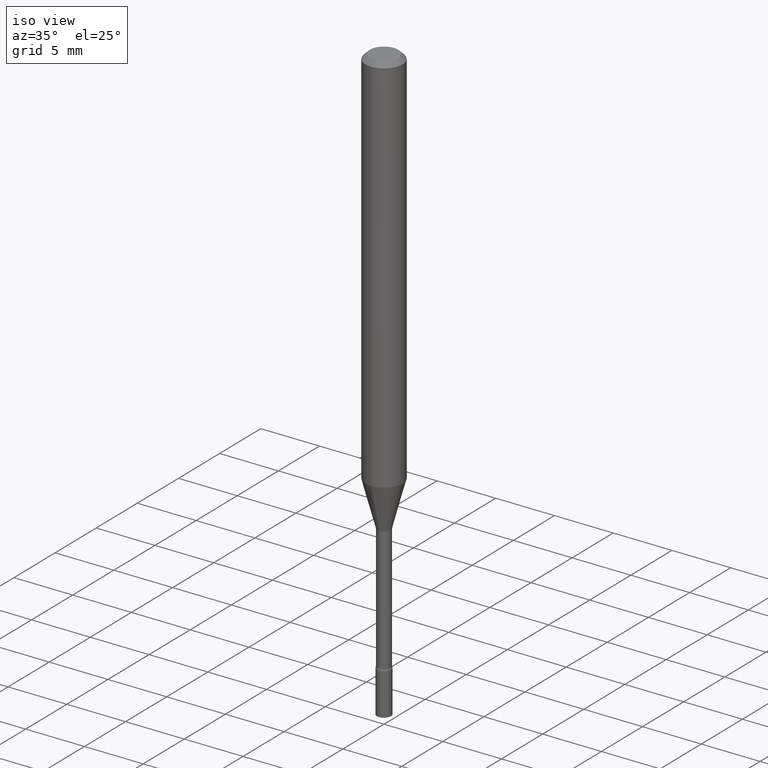
[diagram: clean part render]
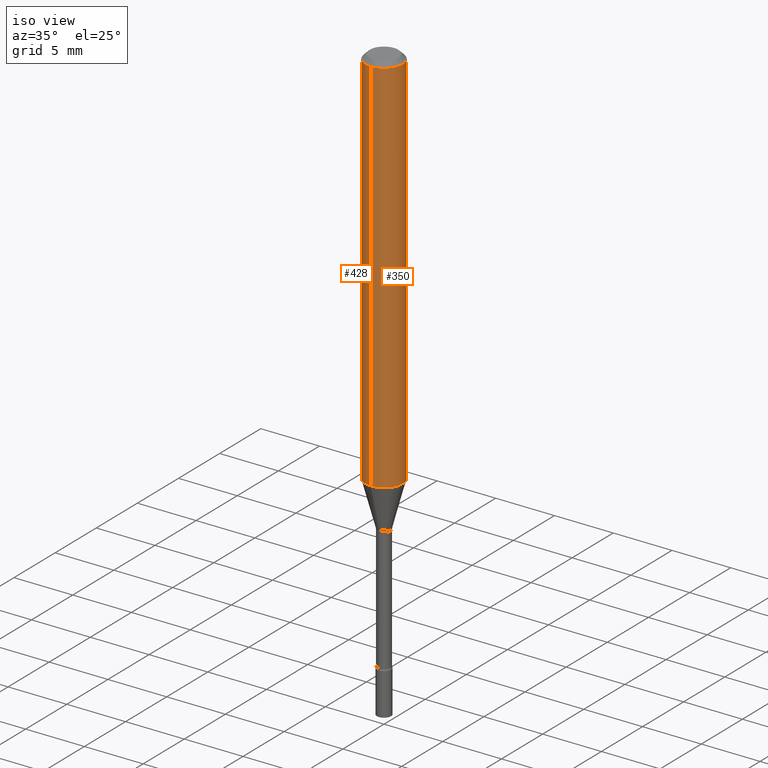
[diagram: same view with one multi-face feature highlighted, each face labeled with its STEP entity id]
A machine part, iso view. The highlighted faces form ONE feature: a constant-radius fillet chain: 2 tangent blend faces with common blend radius 1.5875 mm. The faces share edges in the B-rep.
Their STEP definitions:
[1] entity #428 (Cylinder):
#14 = DIRECTION ( 'NONE',  ( -6.982962677686265922E-15, -1.000000000000000000, 3.491467325019567696E-15 ) ) ;
#16 = EDGE_CURVE ( 'NONE', #422, #485, #69, .T. ) ;
#31 = DIRECTION ( 'NONE',  ( -6.982962677686265922E-15, -1.000000000000000000, 4.370956789862821150E-15 ) ) ;
#32 = DIRECTION ( 'NONE',  ( -2.445478591985838029E-29, 3.491467325019567696E-15, 1.000000000000000000 ) ) ;
#34 = ORIENTED_EDGE ( 'NONE', *, *, #16, .F. ) ;
#49 = ORIENTED_EDGE ( 'NONE', *, *, #76, .F. ) ;
#51 = CARTESIAN_POINT ( 'NONE',  ( -4.364351673553603615E-16, -0.06250000000000451028, -1.285225147374217780 ) ) ;
#58 = CARTESIAN_POINT ( 'NONE',  ( 3.668217887978764348E-31, -5.237200987529362293E-17, -0.01500000000000003067 ) ) ;
#69 = CIRCLE ( 'NONE', #372, 0.06250000000000000000 ) ;
#71 = EDGE_LOOP ( 'NONE', ( #49, #467, #303, #34 ) ) ;
#76 = EDGE_CURVE ( 'NONE', #464, #422, #462, .T. ) ;
#102 = LINE ( 'NONE', #411, #405 ) ;
#125 = EDGE_CURVE ( 'NONE', #386, #485, #102, .T. ) ;
#159 = CARTESIAN_POINT ( 'NONE',  ( 4.440892098500937762E-16, 0.06249999999999548278, -1.285225147374218224 ) ) ;
#184 = CARTESIAN_POINT ( 'NONE',  ( 0.000000000000000000, 0.000000000000000000, 0.000000000000000000 ) ) ;
#215 = CARTESIAN_POINT ( 'NONE',  ( 3.142990583785493865E-29, -4.487321607350540658E-15, -1.285225147374218002 ) ) ;
#253 = CIRCLE ( 'NONE', #418, 0.06250000000000000000 ) ;
#274 = EDGE_CURVE ( 'NONE', #464, #386, #253, .T. ) ;
#295 = FACE_OUTER_BOUND ( 'NONE', #71, .T. ) ;
#303 = ORIENTED_EDGE ( 'NONE', *, *, #125, .T. ) ;
#305 = CARTESIAN_POINT ( 'NONE',  ( -4.364351673553912750E-16, -0.06250000000000005551, -0.01499999999999981209 ) ) ;
#309 = AXIS2_PLACEMENT_3D ( 'NONE', #184, #32, #14 ) ;
#321 = CARTESIAN_POINT ( 'NONE',  ( 4.440892098500625669E-16, 0.06250000000000000000, -2.182167078137229810E-16 ) ) ;
#325 = DIRECTION ( 'NONE',  ( -2.445478591985837749E-29, 3.491467325019568091E-15, 1.000000000000000000 ) ) ;
#333 = DIRECTION ( 'NONE',  ( -2.445478591985838029E-29, 3.491467325019567696E-15, 1.000000000000000000 ) ) ;
#337 = DIRECTION ( 'NONE',  ( -2.445478591985837749E-29, 3.491467325019568091E-15, 1.000000000000000000 ) ) ;
#359 = VECTOR ( 'NONE', #325, 39.37007874015748143 ) ;
#372 = AXIS2_PLACEMENT_3D ( 'NONE', #58, #333, #512 ) ;
#373 = CARTESIAN_POINT ( 'NONE',  ( 4.440892098500941706E-16, 0.06249999999999995143, -0.01500000000000024751 ) ) ;
#376 = CYLINDRICAL_SURFACE ( 'NONE', #309, 0.06250000000000000000 ) ;
#386 = VERTEX_POINT ( 'NONE', #51 ) ;
#405 = VECTOR ( 'NONE', #337, 39.37007874015748143 ) ;
#411 = CARTESIAN_POINT ( 'NONE',  ( -4.364351673553916201E-16, -0.06250000000000000000, 2.182167078137229810E-16 ) ) ;
#418 = AXIS2_PLACEMENT_3D ( 'NONE', #215, #449, #31 ) ;
#422 = VERTEX_POINT ( 'NONE', #373 ) ;
#428 = ADVANCED_FACE ( 'NONE', ( #295 ), #376, .T. ) ;
#449 = DIRECTION ( 'NONE',  ( -2.445478591985838029E-29, 3.491467325019567696E-15, 1.000000000000000000 ) ) ;
#462 = LINE ( 'NONE', #321, #359 ) ;
#464 = VERTEX_POINT ( 'NONE', #159 ) ;
#467 = ORIENTED_EDGE ( 'NONE', *, *, #274, .T. ) ;
#485 = VERTEX_POINT ( 'NONE', #305 ) ;
#512 = DIRECTION ( 'NONE',  ( -6.982962677686265922E-15, -1.000000000000000000, 3.483106191921935554E-15 ) ) ;
[2] entity #350 (Cylinder):
#9 = AXIS2_PLACEMENT_3D ( 'NONE', #15, #255, #408 ) ;
#15 = CARTESIAN_POINT ( 'NONE',  ( 3.668217887978764348E-31, -5.237200987529362293E-17, -0.01500000000000003067 ) ) ;
#21 = CARTESIAN_POINT ( 'NONE',  ( 0.000000000000000000, 0.000000000000000000, 0.000000000000000000 ) ) ;
#51 = CARTESIAN_POINT ( 'NONE',  ( -4.364351673553603615E-16, -0.06250000000000451028, -1.285225147374217780 ) ) ;
#74 = ORIENTED_EDGE ( 'NONE', *, *, #331, .T. ) ;
#76 = EDGE_CURVE ( 'NONE', #464, #422, #462, .T. ) ;
#102 = LINE ( 'NONE', #411, #405 ) ;
#125 = EDGE_CURVE ( 'NONE', #386, #485, #102, .T. ) ;
#159 = CARTESIAN_POINT ( 'NONE',  ( 4.440892098500937762E-16, 0.06249999999999548278, -1.285225147374218224 ) ) ;
#168 = EDGE_CURVE ( 'NONE', #485, #422, #393, .T. ) ;
#175 = CIRCLE ( 'NONE', #357, 0.06250000000000000000 ) ;
#195 = FACE_OUTER_BOUND ( 'NONE', #470, .T. ) ;
#197 = ORIENTED_EDGE ( 'NONE', *, *, #76, .T. ) ;
#255 = DIRECTION ( 'NONE',  ( -2.445478591985838029E-29, 3.491467325019567696E-15, 1.000000000000000000 ) ) ;
#305 = CARTESIAN_POINT ( 'NONE',  ( -4.364351673553912750E-16, -0.06250000000000005551, -0.01499999999999981209 ) ) ;
#321 = CARTESIAN_POINT ( 'NONE',  ( 4.440892098500625669E-16, 0.06250000000000000000, -2.182167078137229810E-16 ) ) ;
#325 = DIRECTION ( 'NONE',  ( -2.445478591985837749E-29, 3.491467325019568091E-15, 1.000000000000000000 ) ) ;
#331 = EDGE_CURVE ( 'NONE', #386, #464, #175, .T. ) ;
#337 = DIRECTION ( 'NONE',  ( -2.445478591985837749E-29, 3.491467325019568091E-15, 1.000000000000000000 ) ) ;
#348 = DIRECTION ( 'NONE',  ( -6.982962677686265922E-15, -1.000000000000000000, 4.370956789862821150E-15 ) ) ;
#350 = ADVANCED_FACE ( 'NONE', ( #195 ), #369, .T. ) ;
#357 = AXIS2_PLACEMENT_3D ( 'NONE', #388, #508, #348 ) ;
#359 = VECTOR ( 'NONE', #325, 39.37007874015748143 ) ;
#369 = CYLINDRICAL_SURFACE ( 'NONE', #427, 0.06250000000000000000 ) ;
#373 = CARTESIAN_POINT ( 'NONE',  ( 4.440892098500941706E-16, 0.06249999999999995143, -0.01500000000000024751 ) ) ;
#386 = VERTEX_POINT ( 'NONE', #51 ) ;
#388 = CARTESIAN_POINT ( 'NONE',  ( 3.142990583785493865E-29, -4.487321607350540658E-15, -1.285225147374218002 ) ) ;
#393 = CIRCLE ( 'NONE', #9, 0.06250000000000000000 ) ;
#405 = VECTOR ( 'NONE', #337, 39.37007874015748143 ) ;
#407 = DIRECTION ( 'NONE',  ( -2.445478591985838029E-29, 3.491467325019567696E-15, 1.000000000000000000 ) ) ;
#408 = DIRECTION ( 'NONE',  ( -6.982962677686265922E-15, -1.000000000000000000, 3.483106191921935554E-15 ) ) ;
#411 = CARTESIAN_POINT ( 'NONE',  ( -4.364351673553916201E-16, -0.06250000000000000000, 2.182167078137229810E-16 ) ) ;
#422 = VERTEX_POINT ( 'NONE', #373 ) ;
#427 = AXIS2_PLACEMENT_3D ( 'NONE', #21, #407, #500 ) ;
#462 = LINE ( 'NONE', #321, #359 ) ;
#464 = VERTEX_POINT ( 'NONE', #159 ) ;
#470 = EDGE_LOOP ( 'NONE', ( #74, #197, #482, #494 ) ) ;
#482 = ORIENTED_EDGE ( 'NONE', *, *, #168, .F. ) ;
#485 = VERTEX_POINT ( 'NONE', #305 ) ;
#494 = ORIENTED_EDGE ( 'NONE', *, *, #125, .F. ) ;
#500 = DIRECTION ( 'NONE',  ( -6.982962677686265922E-15, -1.000000000000000000, 3.491467325019567696E-15 ) ) ;
#508 = DIRECTION ( 'NONE',  ( -2.445478591985838029E-29, 3.491467325019567696E-15, 1.000000000000000000 ) ) ;